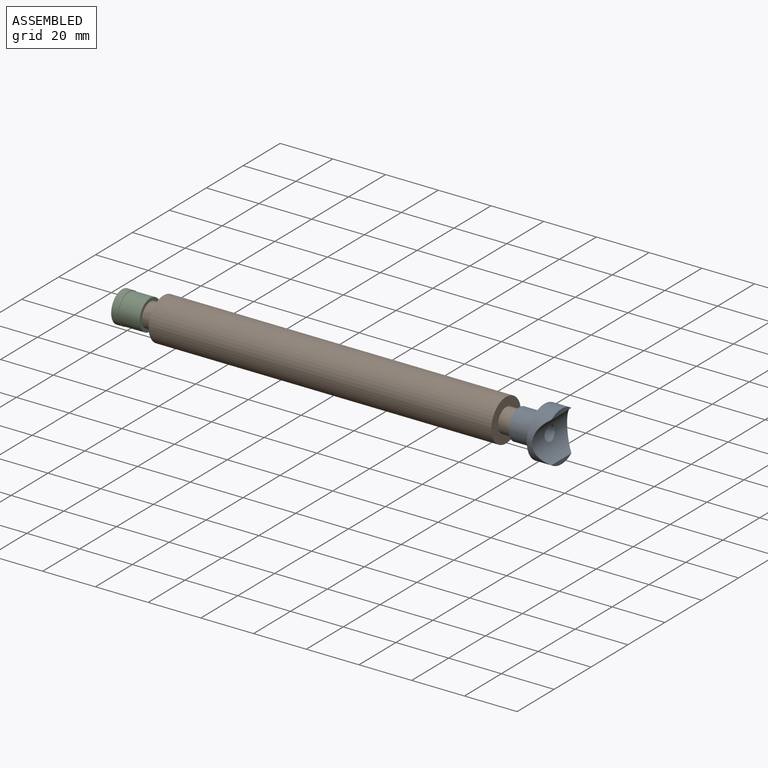
[diagram: assembled view]
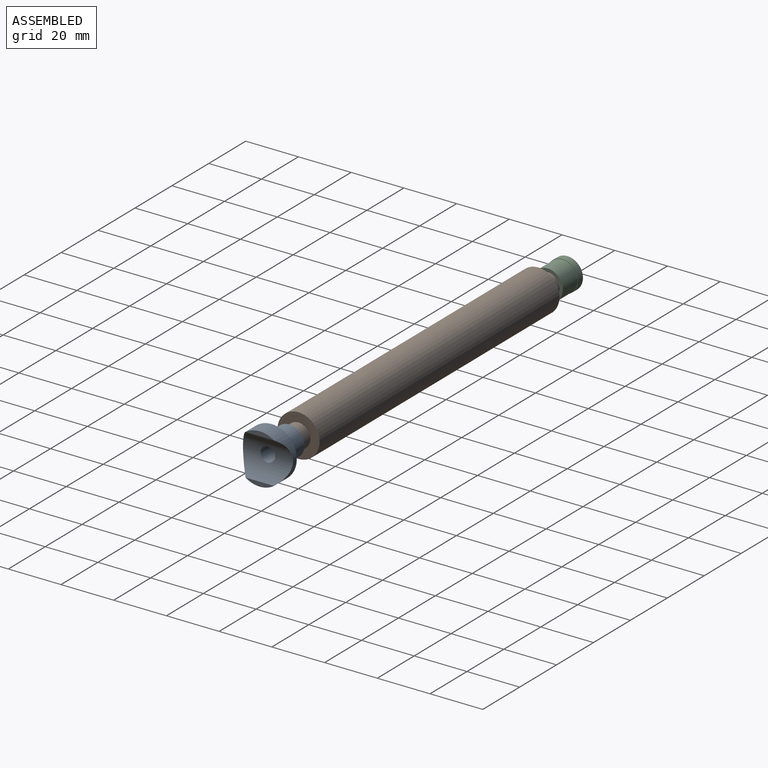
[diagram: assembled view, second angle]
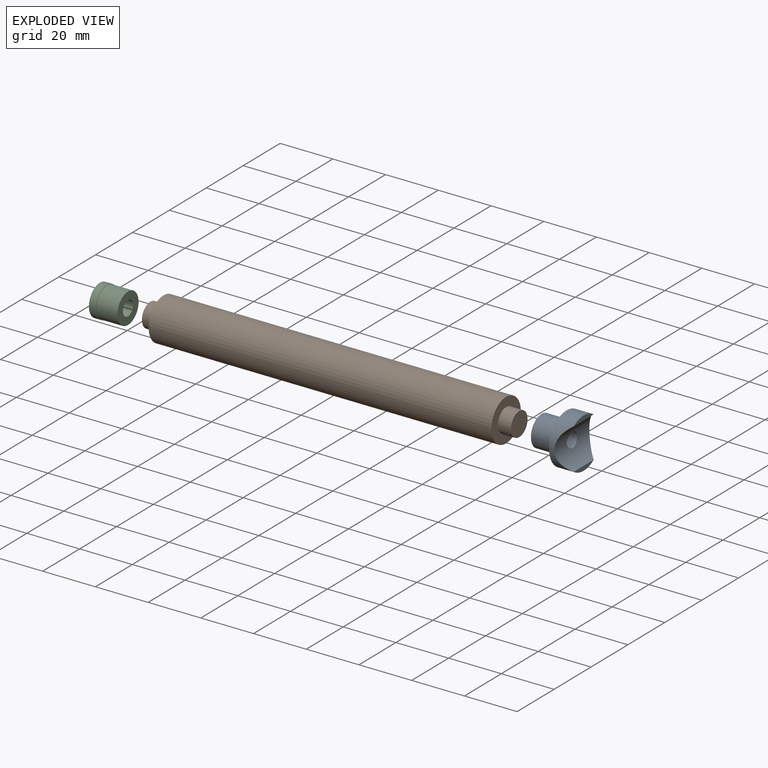
[diagram: exploded view]
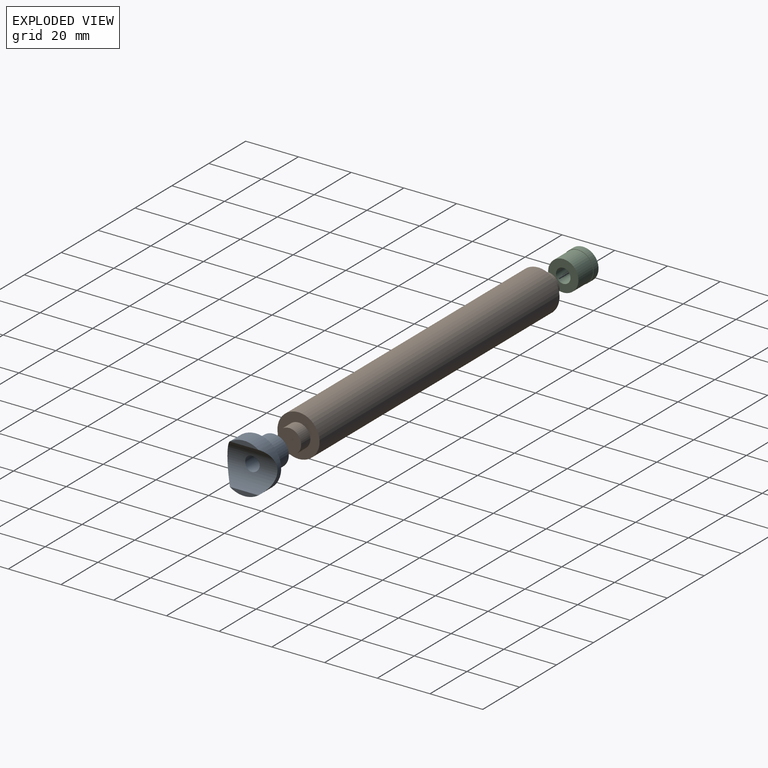
[diagram: exploded view, second angle]
ASSEMBLY  parts=3 mates=2
PART A: 8 faces, bbox 16x19x19 mm
  f0: cylinder r=2.75mm len=11.93mm, axis (1,0,0), area 202.4mm2, adj f5,f7
  f1: cylinder r=9.5mm len=19mm, axis (-1,0,0), area 278.7mm2, adj f2,f3,f6,f7
  f2: plane 10.86x1.71mm, normal (1,0,0), area 12.6mm2, adj f1,f7
  f3: plane 10.86x1.71mm, normal (1,0,0), area 12.6mm2, adj f1,f7
  f4: cylinder r=5.75mm len=11.5mm, axis (1,0,0), area 343.2mm2, adj f5,f6
  f5: plane 11.5x11.5mm, normal (-1,0,0), area 80.1mm2, adj f0,f4
  f6: plane 19x19mm, normal (-1,0,0), area 179.7mm2, adj f1,f4
  f7: cylinder r=9mm len=19mm, axis (0,1,0), area 279.8mm2, adj f0,f1,f2,f3
PART B: 7 faces, bbox 140x16x16 mm
  f0: cylinder r=4.5mm len=9mm, axis (-1,0,0), area 141.4mm2, adj f1,f3
  f1: plane 9x9mm, normal (1,0,0), area 63.6mm2, adj f0
  f2: cylinder r=8mm len=130mm, axis (-1,0,0), area 6534.5mm2, adj f3,f4
  f3: plane 16x16mm, normal (1,0,0), area 137.4mm2, adj f0,f2
  f4: plane 16x16mm, normal (-1,0,0), area 137.4mm2, adj f2,f6
  f5: plane 9x9mm, normal (-1,0,0), area 63.6mm2, adj f6
  f6: cylinder r=4.5mm len=9mm, axis (-1,0,0), area 141.4mm2, adj f4,f5
PART C: 6 faces, bbox 10.7x11.8x11.8 mm
  f0: cylinder r=2.75mm len=10.7mm, axis (-1,0,0), area 184.9mm2, adj f2,f4
  f1: cylinder r=5.75mm len=11.5mm, axis (-1,0,0), area 289mm2, adj f2,f5
  f2: plane 11.5x11.5mm, normal (1,0,0), area 80.1mm2, adj f0,f1
  f3: cylinder r=5.9mm len=11.8mm, axis (1,0,0), area 100.1mm2, adj f4,f5
  f4: plane 11.8x11.8mm, normal (-1,0,0), area 85.6mm2, adj f0,f3
  f5: plane 11.8x11.8mm, normal (1,0,0), area 5.5mm2, adj f1,f3
PLACE A t=(83.57,-27.56,20.4)mm
PLACE B t=(4.07,-27.56,20.4)mm
PLACE C t=(-73.93,-27.56,20.4)mm
MATE revolute B.f0 <-> A.f4  axis (1,0,0) through (74.07,-27.56,20.4)mm
MATE revolute B.f0 <-> C.f1  axis (-1,0,0) through (-65.93,-27.56,20.4)mm
